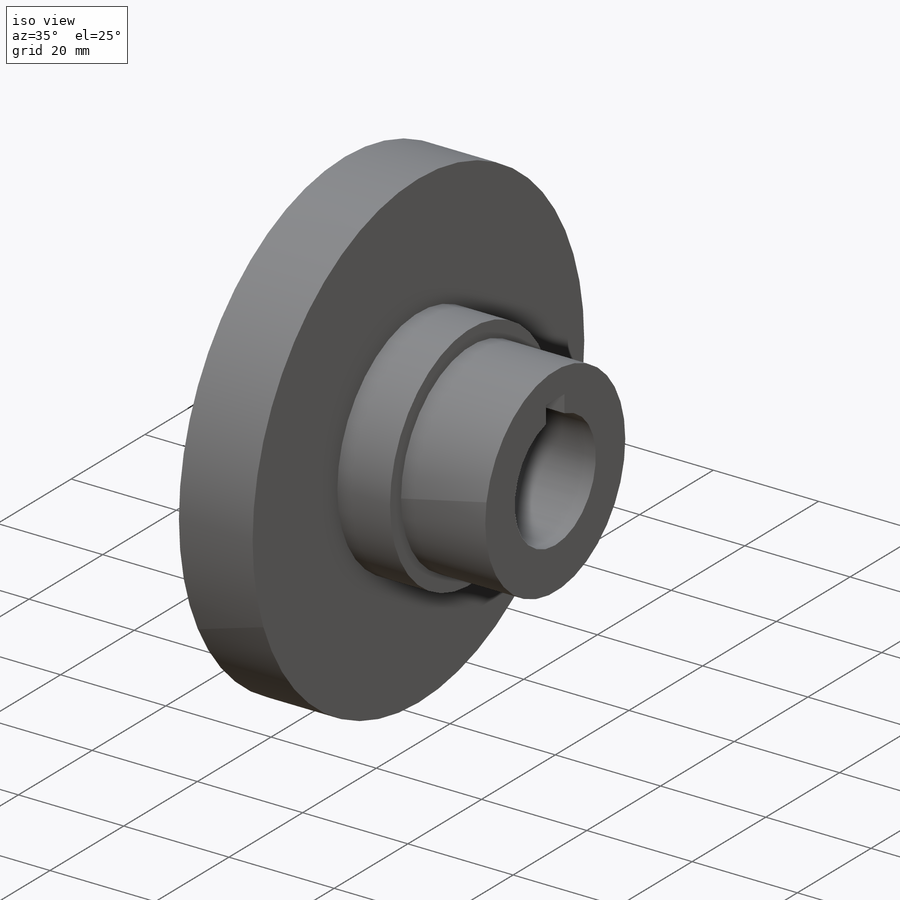
[diagram: iso view]
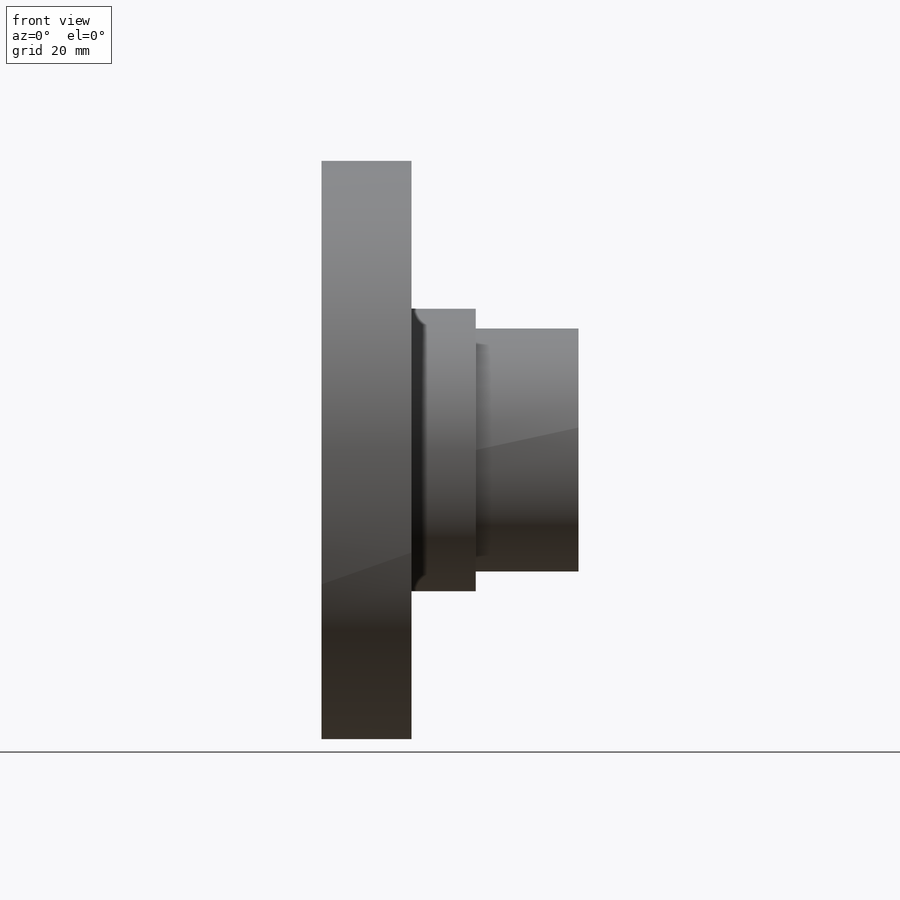
[diagram: front view]
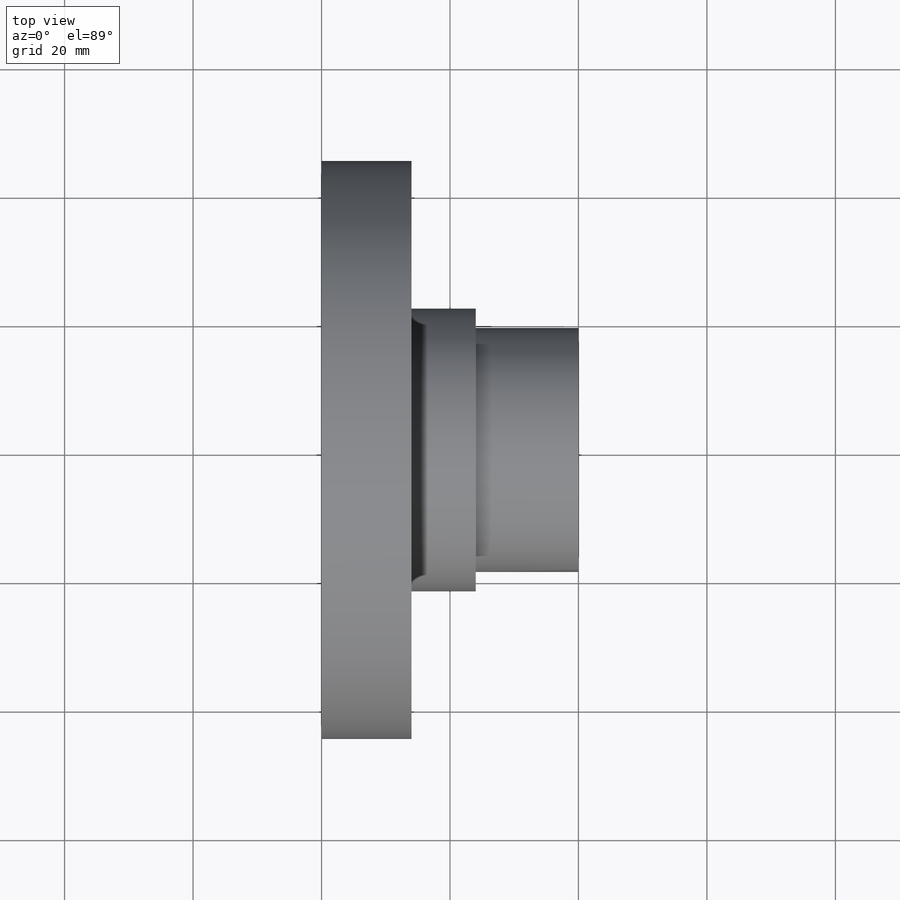
[diagram: top view]
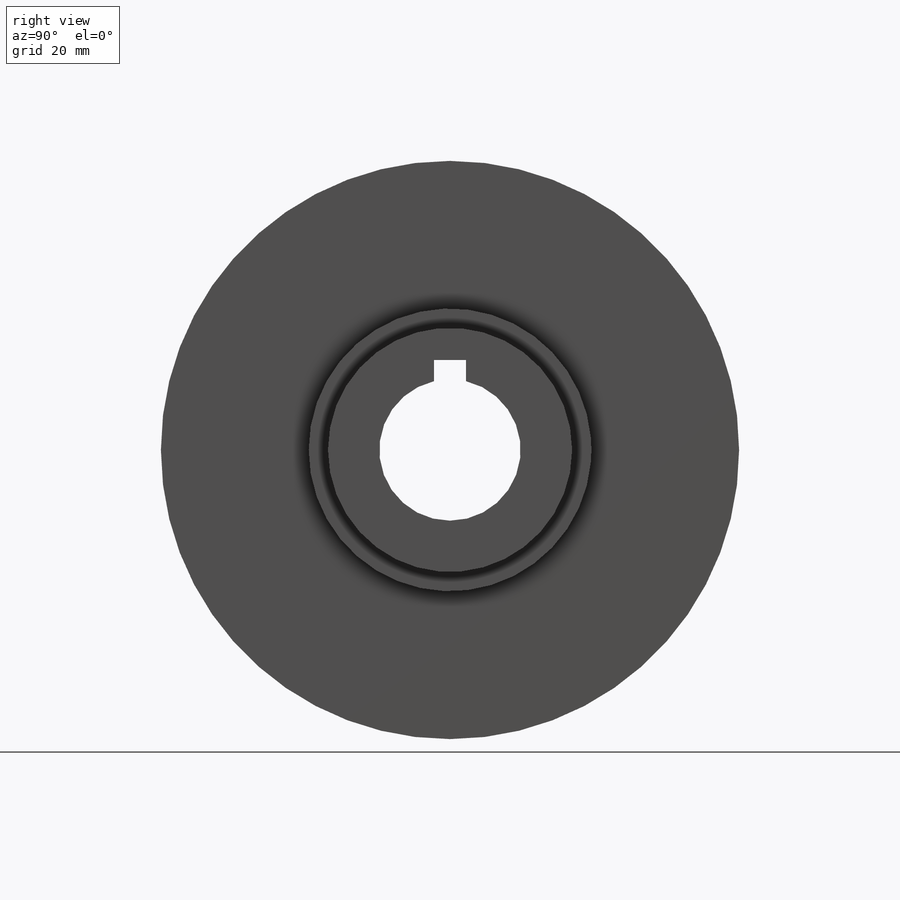
[diagram: right view]
SOLIDWORKS PART (.sldprt)
format: sldprt  version: not decoded by parser v0  size: 195,072 bytes
history: native  units: mm
features: sketch x7, cut_extrude x4, plane x3, extrude x3, material x1, fillet x1 (+13 scaffold rows collapsed)
feature tree (32):
  scaffold x13  (default folders/planes/origin — collapsed)
  material  "材质 <未指定>"
  plane  "前视基准面"
  plane  "上视基准面"
  plane  "右视基准面"
  sketch  "草图1"  dims[D1=30.0mm]
  extrude  "凸台-拉伸1"  Depth=14mm
  sketch  "草图2"  dims[D1=~17.781581mm]
  extrude  "凸台-拉伸2"  Depth=10mm
  sketch  "草图3"  dims[D1=~8.568511mm]
  extrude  "凸台-拉伸3"  Depth=16mm
  sketch  "草图4"  dims[D1=~22.046025mm]
  cut_extrude  "切除-拉伸1"  Depth=12mm
  sketch  "草图5"  dims[D1=~10.870446mm]
  cut_extrude  "切除-拉伸2"  [1 undecoded]
  sketch  "草图6"  dims[D1=14.0mm]
  cut_extrude  "切除-拉伸3"  Depth=5mm
  sketch  "草图7"  dims[c1.D1=8.0mm c2.D1=4.0]
  cut_extrude  "切除-拉伸4"  Depth=12mm
  fillet  "圆角1"  Radius=3mm
decode coverage: 14 of 15 modeling features carry decoded parameters
note: ~ marks probable driven/reference dimensions
note: 1 parameter value undecoded
note: suppression state not decoded; provenance and decode notes live in map.json
